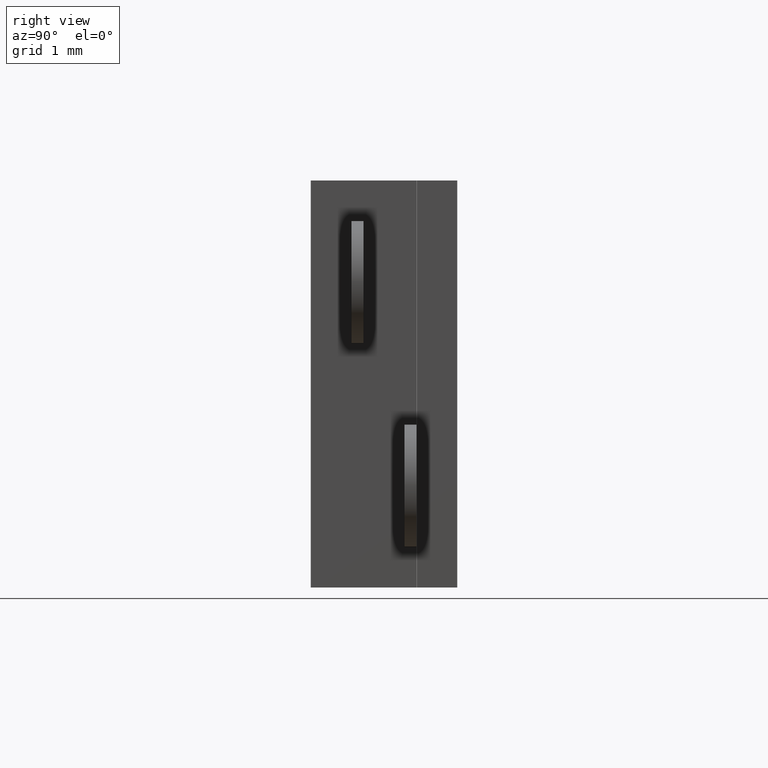
[diagram: clean part render]
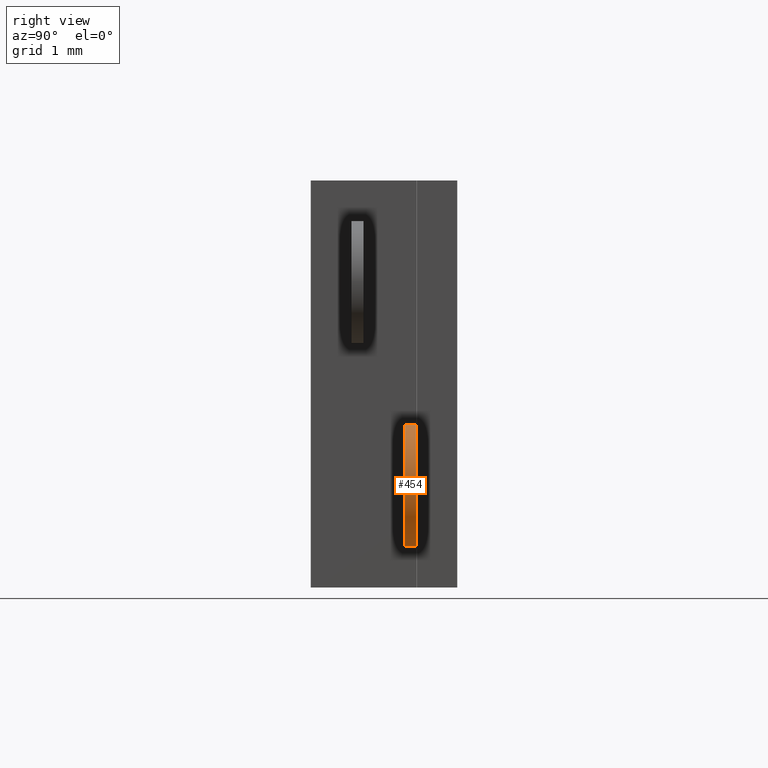
[diagram: same view with one face highlighted and labeled with its STEP entity id]
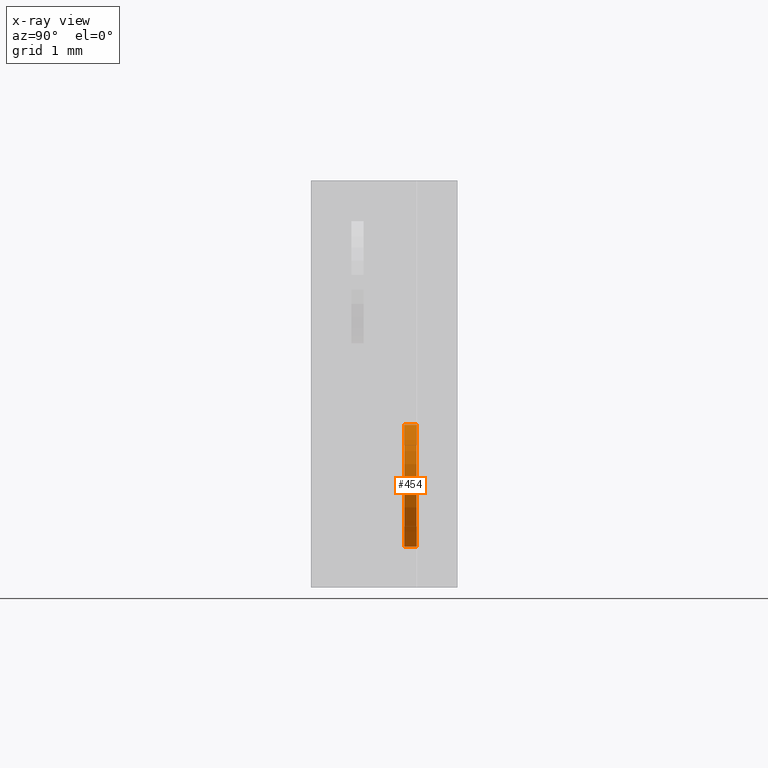
[diagram: x-ray of the same camera — body ghosted, the highlighted face saturated]
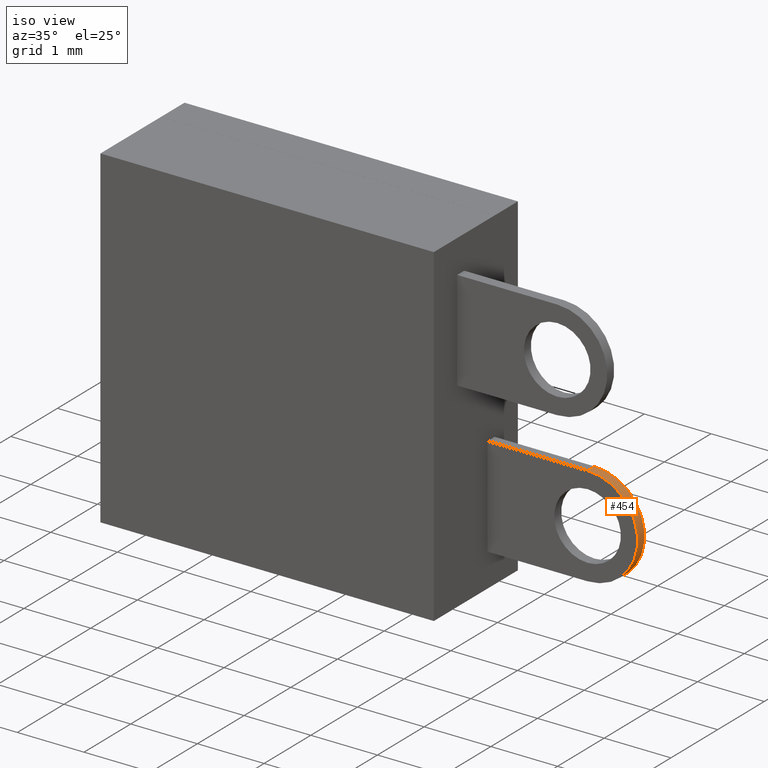
[diagram: same view with one face highlighted and labeled with its STEP entity id]
A machine part, right view. The second image highlights one B-rep face of the part: STEP entity #454.
The next image is the same camera in x-ray: the body ghosted, the highlighted face saturated — about 0% of this face is hidden behind the body in this view.
A second angle (iso view) of the same face is appended — the face is thin or edge-on in the first view.
In plain terms, the highlighted cylindrical surface (partial cylindrical patch) has radius 0.75 mm, axis along (-0, -1, -0).
Its self-contained STEP definition (entity closure, byte-faithful):
#5 = VECTOR ( 'NONE', #1025, 1000.000000000000000 ) ;
#152 = DIRECTION ( 'NONE',  ( 0.0000000000000000000, 0.0000000000000000000, 1.000000000000000000 ) ) ;
#156 = CYLINDRICAL_SURFACE ( 'NONE', #563, 0.7500000000000000000 ) ;
#158 = DIRECTION ( 'NONE',  ( -0.0000000000000000000, -1.000000000000000000, -0.0000000000000000000 ) ) ;
#191 = LINE ( 'NONE', #676, #942 ) ;
#192 = ORIENTED_EDGE ( 'NONE', *, *, #1116, .F. ) ;
#196 = VERTEX_POINT ( 'NONE', #1277 ) ;
#232 = VERTEX_POINT ( 'NONE', #1166 ) ;
#258 = ORIENTED_EDGE ( 'NONE', *, *, #747, .T. ) ;
#267 = CARTESIAN_POINT ( 'NONE',  ( 4.000000000000000000, 0.5000000000000000000, -1.250000000000000000 ) ) ;
#298 = LINE ( 'NONE', #609, #5 ) ;
#408 = DIRECTION ( 'NONE',  ( -0.0000000000000000000, -1.000000000000000000, -0.0000000000000000000 ) ) ;
#410 = DIRECTION ( 'NONE',  ( 0.0000000000000000000, 0.0000000000000000000, 1.000000000000000000 ) ) ;
#419 = VERTEX_POINT ( 'NONE', #915 ) ;
#426 = EDGE_CURVE ( 'NONE', #196, #232, #298, .T. ) ;
#454 = ADVANCED_FACE ( 'NONE', ( #984 ), #156, .T. ) ;
#483 = ORIENTED_EDGE ( 'NONE', *, *, #759, .T. ) ;
#510 = CARTESIAN_POINT ( 'NONE',  ( 4.000000000000000000, 0.6500000000000000200, -1.250000000000000000 ) ) ;
#563 = AXIS2_PLACEMENT_3D ( 'NONE', #698, #408, #911 ) ;
#577 = ORIENTED_EDGE ( 'NONE', *, *, #426, .F. ) ;
#609 = CARTESIAN_POINT ( 'NONE',  ( 4.000000000000000000, 0.6500000000000000200, -2.000000000000000000 ) ) ;
#676 = CARTESIAN_POINT ( 'NONE',  ( 4.000000000000000000, 0.6500000000000000200, -0.5000000000000000000 ) ) ;
#698 = CARTESIAN_POINT ( 'NONE',  ( 4.000000000000000000, 0.6500000000000000200, -1.250000000000000000 ) ) ;
#731 = CIRCLE ( 'NONE', #1168, 0.7500000000000000000 ) ;
#747 = EDGE_CURVE ( 'NONE', #1086, #419, #191, .T. ) ;
#759 = EDGE_CURVE ( 'NONE', #419, #232, #731, .T. ) ;
#877 = DIRECTION ( 'NONE',  ( 0.0000000000000000000, 1.000000000000000000, 0.0000000000000000000 ) ) ;
#911 = DIRECTION ( 'NONE',  ( 0.0000000000000000000, 0.0000000000000000000, -1.000000000000000000 ) ) ;
#915 = CARTESIAN_POINT ( 'NONE',  ( 4.000000000000000000, 0.5000000000000000000, -0.5000000000000000000 ) ) ;
#942 = VECTOR ( 'NONE', #158, 1000.000000000000000 ) ;
#984 = FACE_OUTER_BOUND ( 'NONE', #1212, .T. ) ;
#1025 = DIRECTION ( 'NONE',  ( -0.0000000000000000000, -1.000000000000000000, -0.0000000000000000000 ) ) ;
#1041 = CARTESIAN_POINT ( 'NONE',  ( 4.000000000000000000, 0.6500000000000000200, -0.5000000000000000000 ) ) ;
#1086 = VERTEX_POINT ( 'NONE', #1041 ) ;
#1116 = EDGE_CURVE ( 'NONE', #1086, #196, #1312, .T. ) ;
#1130 = DIRECTION ( 'NONE',  ( 0.0000000000000000000, 1.000000000000000000, 0.0000000000000000000 ) ) ;
#1166 = CARTESIAN_POINT ( 'NONE',  ( 4.000000000000000000, 0.5000000000000000000, -2.000000000000000000 ) ) ;
#1168 = AXIS2_PLACEMENT_3D ( 'NONE', #267, #877, #152 ) ;
#1212 = EDGE_LOOP ( 'NONE', ( #483, #577, #192, #258 ) ) ;
#1224 = AXIS2_PLACEMENT_3D ( 'NONE', #510, #1130, #410 ) ;
#1277 = CARTESIAN_POINT ( 'NONE',  ( 4.000000000000000000, 0.6500000000000000200, -2.000000000000000000 ) ) ;
#1312 = CIRCLE ( 'NONE', #1224, 0.7500000000000000000 ) ;